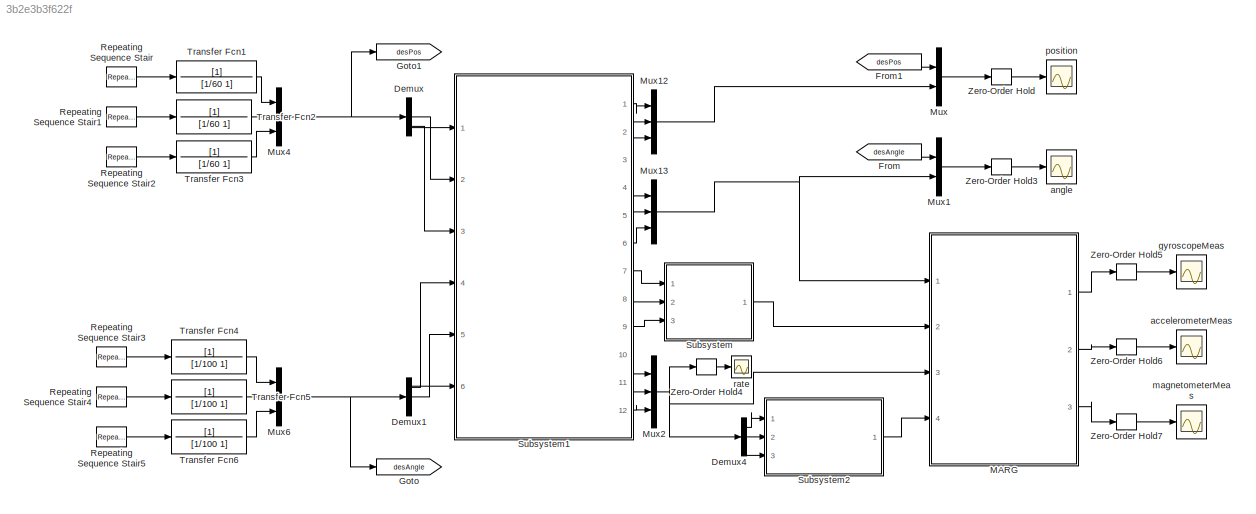
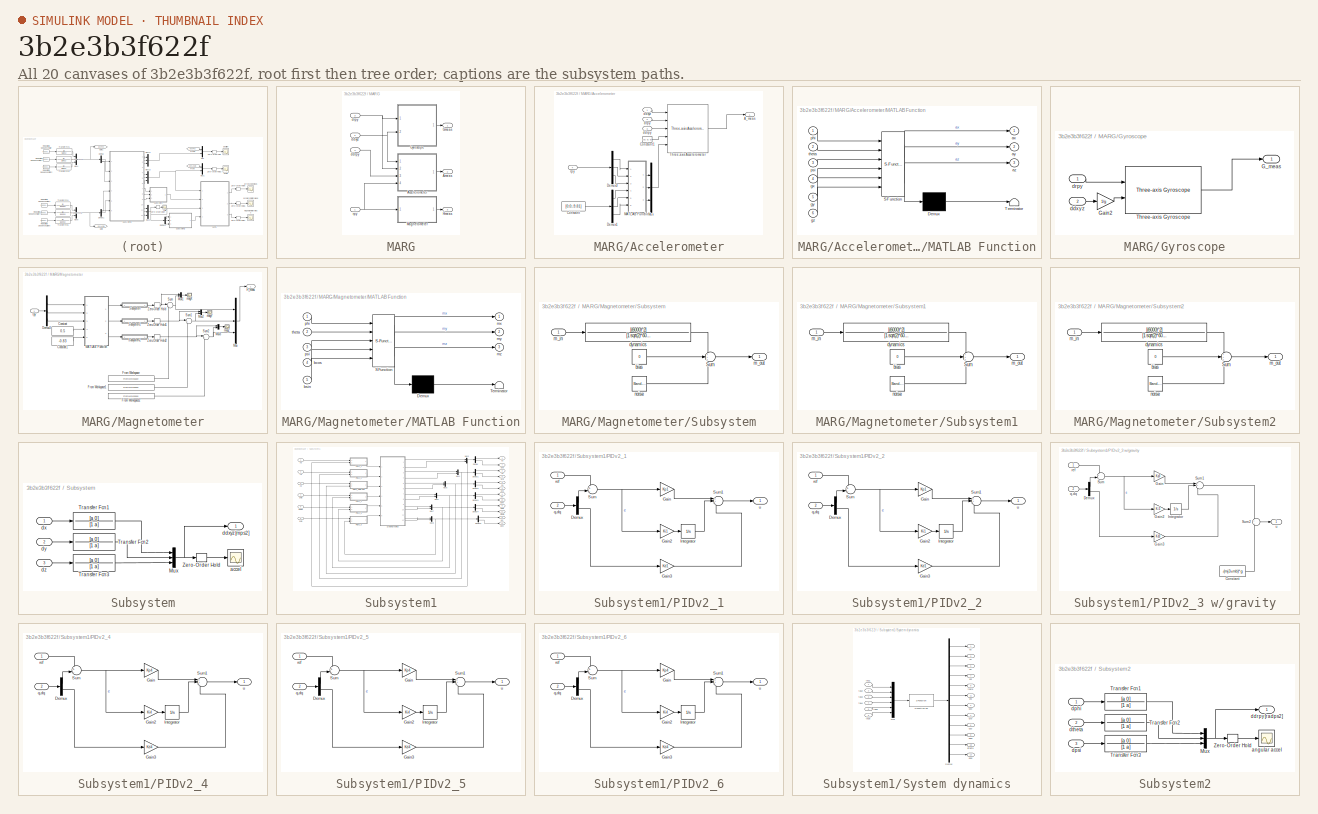
[diagram: thumbnail index - all 20 canvases of the model, root first then tree order]
MODEL slx_3b2e3b3f622f
KIND model
CONFIG AbsTol = auto
CONFIG EnableMultiTasking = on
CONFIG FixedStep = auto
CONFIG MaxStep = auto
CONFIG MinStep = auto
CONFIG RelTol = 1e-3
CONFIG SampleTimeConstraint = Unconstrained
CONFIG Solver = ode15s
CONFIG SolverName = ode15s
CONFIG StartTime = 0.0
CONFIG StopTime = tsim
BLOCK [Demux] Demux
  DisplayOption = bar
  Outputs = 3
  Ports = [1, 3]
BLOCK [Demux] Demux1
  DisplayOption = bar
  Outputs = 3
  Ports = [1, 3]
BLOCK [Demux] Demux4
  DisplayOption = bar
  Outputs = 3
  Ports = [1, 3]
BLOCK [From] From
  GotoTag = desAngle
BLOCK [From] From1
  GotoTag = desPos
BLOCK [Goto] Goto
  GotoTag = desAngle
BLOCK [Goto] Goto1
  GotoTag = desPos
BLOCK [SubSystem] MARG
  Ports = [4, 3]
  RequestExecContextInheritance = off
BLOCK [SubSystem] MARG/Accelerometer
  Ports = [4, 1]
  RequestExecContextInheritance = off
BLOCK [Outport] MARG/Accelerometer/A_meas
  IconDisplay = Port number
BLOCK [Constant] MARG/Accelerometer/Constant
  Value = [0;0;-9.81]
BLOCK [Constant] MARG/Accelerometer/Constant1
  Value = [0; 0; 0]
BLOCK [Demux] MARG/Accelerometer/Demux1
  DisplayOption = bar
  Outputs = 3
  Ports = [1, 3]
BLOCK [Demux] MARG/Accelerometer/Demux3
  DisplayOption = bar
  Outputs = 3
  Ports = [1, 3]
BLOCK [SubSystem] MARG/Accelerometer/MATLAB Function
  ErrorFcn = Stateflow.Translate.translate
  PermitHierarchicalResolution = ExplicitOnly
  Ports = [6, 3]
  RequestExecContextInheritance = off
  SFBlockType = MATLAB Function
  TreatAsAtomicUnit = on
BLOCK [Demux] MARG/Accelerometer/MATLAB Function/ Demux 
  Outputs = 1
  Ports = [1, 1]
BLOCK [S-Function] MARG/Accelerometer/MATLAB Function/ SFunction 
  EnableBusSupport = on
  FunctionName = sf_sfun
  PortCounts = [6 4]
  Ports = [6, 4]
  SFcnIsStateOwnerBlock = off
  SFunctionDeploymentMode = off
  Tag = Stateflow S-Function testbench_model_2019a 1
BLOCK [Terminator] MARG/Accelerometer/MATLAB Function/ Terminator 
BLOCK [Outport] MARG/Accelerometer/MATLAB Function/ax
  IconDisplay = Port number
BLOCK [Outport] MARG/Accelerometer/MATLAB Function/ay
  IconDisplay = Port number
  Port = 2
BLOCK [Outport] MARG/Accelerometer/MATLAB Function/az
  IconDisplay = Port number
  Port = 3
BLOCK [Inport] MARG/Accelerometer/MATLAB Function/gx
  IconDisplay = Port number
  Port = 4
BLOCK [Inport] MARG/Accelerometer/MATLAB Function/gy
  IconDisplay = Port number
  Port = 5
BLOCK [Inport] MARG/Accelerometer/MATLAB Function/gz
  IconDisplay = Port number
  Port = 6
BLOCK [Inport] MARG/Accelerometer/MATLAB Function/phi
  IconDisplay = Port number
BLOCK [Inport] MARG/Accelerometer/MATLAB Function/psi
  IconDisplay = Port number
  Port = 3
BLOCK [Inport] MARG/Accelerometer/MATLAB Function/theta
  IconDisplay = Port number
  Port = 2
BLOCK [Mux] MARG/Accelerometer/Mux
  DisplayOption = bar
  Inputs = 3
  Ports = [3, 1]
BLOCK [Reference] MARG/Accelerometer/Three-axis Accelerometer  REF=aerolibnav/Three-axis Accelerometer
  Ports = [5, 1]
  SourceBlock = aerolibnav/Three-axis Accelerometer
  SourceProductBaseCode = AE
  SourceProductName = Aerospace Blockset
  SourceType = Three-axis Accelerometer
BLOCK [Inport] MARG/Accelerometer/ddrpy
  IconDisplay = Port number
  Port = 3
BLOCK [Inport] MARG/Accelerometer/ddxyz
  IconDisplay = Port number
BLOCK [Inport] MARG/Accelerometer/drpy
  IconDisplay = Port number
  Port = 2
BLOCK [Inport] MARG/Accelerometer/rpy
  IconDisplay = Port number
  Port = 4
BLOCK [Outport] MARG/Ameas
  IconDisplay = Port number
  Port = 2
BLOCK [Outport] MARG/Gmeas
  IconDisplay = Port number
BLOCK [SubSystem] MARG/Gyroscope
  Ports = [2, 1]
  RequestExecContextInheritance = off
BLOCK [Outport] MARG/Gyroscope/G_meas
  IconDisplay = Port number
BLOCK [Gain] MARG/Gyroscope/Gain2
  Gain = 1/g
  OutDataTypeStr = Inherit: Inherit via internal rule
  ParamDataTypeStr = Inherit: Inherit via internal rule
  SaturateOnIntegerOverflow = off
BLOCK [Reference] MARG/Gyroscope/Three-axis Gyroscope  REF=aerolibnav/Three-axis Gyroscope
  Ports = [2, 1]
  SourceBlock = aerolibnav/Three-axis Gyroscope
  SourceProductBaseCode = AE
  SourceProductName = Aerospace Blockset
  SourceType = Three-axis Gyroscope
BLOCK [Inport] MARG/Gyroscope/ddxyz
  IconDisplay = Port number
  Port = 2
BLOCK [Inport] MARG/Gyroscope/drpy
  IconDisplay = Port number
BLOCK [Outport] MARG/Hmeas
  IconDisplay = Port number
  Port = 3
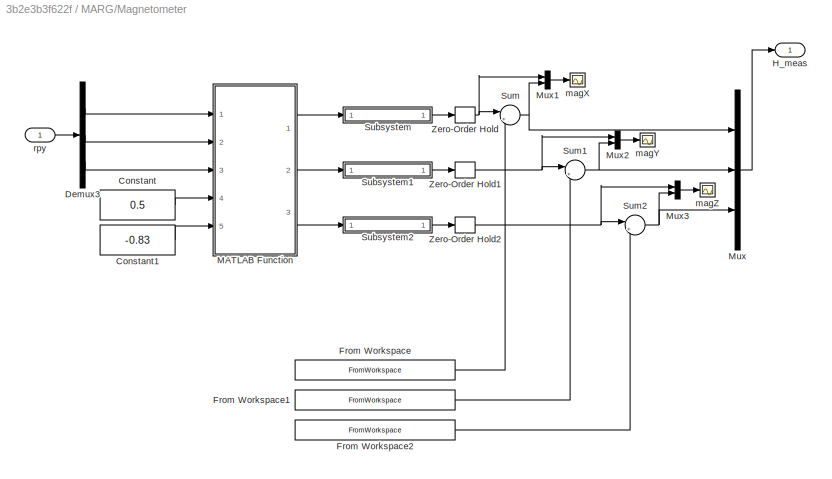
BLOCK [SubSystem] MARG/Magnetometer
  Ports = [1, 1]
  RequestExecContextInheritance = off
BLOCK [Constant] MARG/Magnetometer/Constant
  Value = 0.5
BLOCK [Constant] MARG/Magnetometer/Constant1
  Value = -0.83
BLOCK [Demux] MARG/Magnetometer/Demux3
  DisplayOption = bar
  Outputs = 3
  Ports = [1, 3]
BLOCK [FromWorkspace] MARG/Magnetometer/From Workspace
  SampleTime = Tsampling
  VariableName = [magDistTime magDisturbance(:,1)]
  ZeroCross = on
BLOCK [FromWorkspace] MARG/Magnetometer/From Workspace1
  SampleTime = Tsampling
  VariableName = [magDistTime magDisturbance(:,2)]
  ZeroCross = on
BLOCK [FromWorkspace] MARG/Magnetometer/From Workspace2
  SampleTime = Tsampling
  VariableName = [magDistTime magDisturbance(:,3)]
  ZeroCross = on
BLOCK [Outport] MARG/Magnetometer/H_meas
  IconDisplay = Port number
BLOCK [SubSystem] MARG/Magnetometer/MATLAB Function
  ErrorFcn = Stateflow.Translate.translate
  PermitHierarchicalResolution = ExplicitOnly
  Ports = [5, 3]
  RequestExecContextInheritance = off
  SFBlockType = MATLAB Function
  TreatAsAtomicUnit = on
BLOCK [Demux] MARG/Magnetometer/MATLAB Function/ Demux 
  Outputs = 1
  Ports = [1, 1]
BLOCK [S-Function] MARG/Magnetometer/MATLAB Function/ SFunction 
  EnableBusSupport = on
  FunctionName = sf_sfun
  PortCounts = [5 4]
  Ports = [5, 4]
  SFcnIsStateOwnerBlock = off
  SFunctionDeploymentMode = off
  Tag = Stateflow S-Function testbench_model_2019a 2
BLOCK [Terminator] MARG/Magnetometer/MATLAB Function/ Terminator 
BLOCK [Inport] MARG/Magnetometer/MATLAB Function/bcos
  IconDisplay = Port number
  Port = 4
BLOCK [Inport] MARG/Magnetometer/MATLAB Function/bsin
  IconDisplay = Port number
  Port = 5
BLOCK [Outport] MARG/Magnetometer/MATLAB Function/mx
  IconDisplay = Port number
BLOCK [Outport] MARG/Magnetometer/MATLAB Function/my
  IconDisplay = Port number
  Port = 2
BLOCK [Outport] MARG/Magnetometer/MATLAB Function/mz
  IconDisplay = Port number
  Port = 3
BLOCK [Inport] MARG/Magnetometer/MATLAB Function/phi
  IconDisplay = Port number
BLOCK [Inport] MARG/Magnetometer/MATLAB Function/psi
  IconDisplay = Port number
  Port = 3
BLOCK [Inport] MARG/Magnetometer/MATLAB Function/theta
  IconDisplay = Port number
  Port = 2
BLOCK [Mux] MARG/Magnetometer/Mux
  DisplayOption = bar
  Inputs = 3
  Ports = [3, 1]
BLOCK [Mux] MARG/Magnetometer/Mux1
  DisplayOption = bar
  Inputs = 2
  Ports = [2, 1]
BLOCK [Mux] MARG/Magnetometer/Mux2
  DisplayOption = bar
  Inputs = 2
  Ports = [2, 1]
BLOCK [Mux] MARG/Magnetometer/Mux3
  DisplayOption = bar
  Inputs = 2
  Ports = [2, 1]
BLOCK [SubSystem] MARG/Magnetometer/Subsystem
  Ports = [1, 1]
  RequestExecContextInheritance = off
BLOCK [Sum] MARG/Magnetometer/Subsystem/Sum
  IconShape = round
  InputSameDT = off
  Inputs = +++
  OutDataTypeStr = Inherit: Inherit via internal rule
  Ports = [3, 1]
  SaturateOnIntegerOverflow = off
BLOCK [Constant] MARG/Magnetometer/Subsystem/bias
  Value = 0
BLOCK [TransferFcn] MARG/Magnetometer/Subsystem/dynamics
  Denominator = [1 sqrt(2)*6000 (6000)^2]
  Numerator = [(6000)^2]
BLOCK [Inport] MARG/Magnetometer/Subsystem/m_in
  IconDisplay = Port number
BLOCK [Outport] MARG/Magnetometer/Subsystem/m_out
  IconDisplay = Port number
BLOCK [Reference] MARG/Magnetometer/Subsystem/noise  REF=simulink/Sources/Band-Limited
White Noise
  Ports = [0, 1]
  SourceBlock = simulink/Sources/Band-Limited\nWhite Noise
  SourceProductBaseCode = SL
  SourceProductName = Simulink
  SourceType = Band-Limited White Noise.
BLOCK [SubSystem] MARG/Magnetometer/Subsystem1
  Ports = [1, 1]
  RequestExecContextInheritance = off
BLOCK [Sum] MARG/Magnetometer/Subsystem1/Sum
  IconShape = round
  InputSameDT = off
  Inputs = +++
  OutDataTypeStr = Inherit: Inherit via internal rule
  Ports = [3, 1]
  SaturateOnIntegerOverflow = off
BLOCK [Constant] MARG/Magnetometer/Subsystem1/bias
  Value = 0
BLOCK [TransferFcn] MARG/Magnetometer/Subsystem1/dynamics
  Denominator = [1 sqrt(2)*6000 (6000)^2]
  Numerator = [(6000)^2]
BLOCK [Inport] MARG/Magnetometer/Subsystem1/m_in
  IconDisplay = Port number
BLOCK [Outport] MARG/Magnetometer/Subsystem1/m_out
  IconDisplay = Port number
BLOCK [Reference] MARG/Magnetometer/Subsystem1/noise  REF=simulink/Sources/Band-Limited
White Noise
  Ports = [0, 1]
  SourceBlock = simulink/Sources/Band-Limited\nWhite Noise
  SourceProductBaseCode = SL
  SourceProductName = Simulink
  SourceType = Band-Limited White Noise.
BLOCK [SubSystem] MARG/Magnetometer/Subsystem2
  Ports = [1, 1]
  RequestExecContextInheritance = off
BLOCK [Sum] MARG/Magnetometer/Subsystem2/Sum
  IconShape = round
  InputSameDT = off
  Inputs = +++
  OutDataTypeStr = Inherit: Inherit via internal rule
  Ports = [3, 1]
  SaturateOnIntegerOverflow = off
BLOCK [Constant] MARG/Magnetometer/Subsystem2/bias
  Value = 0
BLOCK [TransferFcn] MARG/Magnetometer/Subsystem2/dynamics
  Denominator = [1 sqrt(2)*6000 (6000)^2]
  Numerator = [(6000)^2]
BLOCK [Inport] MARG/Magnetometer/Subsystem2/m_in
  IconDisplay = Port number
BLOCK [Outport] MARG/Magnetometer/Subsystem2/m_out
  IconDisplay = Port number
BLOCK [Reference] MARG/Magnetometer/Subsystem2/noise  REF=simulink/Sources/Band-Limited
White Noise
  Ports = [0, 1]
  SourceBlock = simulink/Sources/Band-Limited\nWhite Noise
  SourceProductBaseCode = SL
  SourceProductName = Simulink
  SourceType = Band-Limited White Noise.
BLOCK [Sum] MARG/Magnetometer/Sum
  IconShape = round
  InputSameDT = off
  Inputs = |++
  OutDataTypeStr = Inherit: Inherit via internal rule
  Ports = [2, 1]
  SaturateOnIntegerOverflow = off
BLOCK [Sum] MARG/Magnetometer/Sum1
  IconShape = round
  InputSameDT = off
  Inputs = |++
  OutDataTypeStr = Inherit: Inherit via internal rule
  Ports = [2, 1]
  SaturateOnIntegerOverflow = off
BLOCK [Sum] MARG/Magnetometer/Sum2
  IconShape = round
  InputSameDT = off
  Inputs = |++
  OutDataTypeStr = Inherit: Inherit via internal rule
  Ports = [2, 1]
  SaturateOnIntegerOverflow = off
BLOCK [ZeroOrderHold] MARG/Magnetometer/Zero-Order Hold
  SampleTime = Tsampling
BLOCK [ZeroOrderHold] MARG/Magnetometer/Zero-Order Hold1
  SampleTime = Tsampling
BLOCK [ZeroOrderHold] MARG/Magnetometer/Zero-Order Hold2
  SampleTime = Tsampling
BLOCK [Scope] MARG/Magnetometer/magX
  Floating = off
  NumInputPorts = 1
  Ports = [1]
  ScopeSpecificationString = Simulink.scopes.TimeScopeBlockCfg('CurrentConfiguration', extmgr.ConfigurationSet(extmgr.Configuration('Core','General UI',true),extmgr.Configuration('Core','Source UI',true),extmgr.Configuration('Sources','WiredSimulink',true,'DataLoggingVariableName','ScopeData1','DataLoggingSaveFormat','StructureWithTime'),extmgr.Configuration('Visuals','Time Domain',true,'SerializedDisplays',{struct('MinYLimRe...<+1565ch>
BLOCK [Scope] MARG/Magnetometer/magY
  Floating = off
  NumInputPorts = 1
  Ports = [1]
  ScopeSpecificationString = Simulink.scopes.TimeScopeBlockCfg('CurrentConfiguration', extmgr.ConfigurationSet(extmgr.Configuration('Core','General UI',true),extmgr.Configuration('Core','Source UI',true),extmgr.Configuration('Sources','WiredSimulink',true,'DataLoggingVariableName','ScopeData2','DataLoggingSaveFormat','StructureWithTime'),extmgr.Configuration('Visuals','Time Domain',true,'SerializedDisplays',{struct('MinYLimRe...<+1571ch>
BLOCK [Scope] MARG/Magnetometer/magZ
  Floating = off
  NumInputPorts = 1
  Ports = [1]
  ScopeSpecificationString = Simulink.scopes.TimeScopeBlockCfg('CurrentConfiguration', extmgr.ConfigurationSet(extmgr.Configuration('Core','General UI',true),extmgr.Configuration('Core','Source UI',true),extmgr.Configuration('Sources','WiredSimulink',true,'DataLoggingVariableName','ScopeData3','DataLoggingSaveFormat','StructureWithTime'),extmgr.Configuration('Visuals','Time Domain',true,'SerializedDisplays',{struct('MinYLimRe...<+1545ch>
BLOCK [Inport] MARG/Magnetometer/rpy
  IconDisplay = Port number
BLOCK [Inport] MARG/ddrpy
  IconDisplay = Port number
  Port = 4
BLOCK [Inport] MARG/ddxyz
  IconDisplay = Port number
  Port = 2
BLOCK [Inport] MARG/drpy
  IconDisplay = Port number
  Port = 3
BLOCK [Inport] MARG/rpy
  IconDisplay = Port number
BLOCK [Mux] Mux
  DisplayOption = bar
  Inputs = 2
  Ports = [2, 1]
BLOCK [Mux] Mux1
  DisplayOption = bar
  Inputs = 2
  Ports = [2, 1]
BLOCK [Mux] Mux12
  DisplayOption = bar
  Inputs = 3
  Ports = [3, 1]
BLOCK [Mux] Mux13
  DisplayOption = bar
  Inputs = 3
  Ports = [3, 1]
BLOCK [Mux] Mux2
  DisplayOption = bar
  Inputs = 3
  Ports = [3, 1]
BLOCK [Mux] Mux4
  DisplayOption = bar
  Inputs = 3
  Ports = [3, 1]
BLOCK [Mux] Mux6
  DisplayOption = bar
  Inputs = 3
  Ports = [3, 1]
BLOCK [Reference] Repeating Sequence Stair  REF=simulink/Sources/Repeating
Sequence
Stair
  Ports = [0, 1]
  SourceBlock = simulink/Sources/Repeating\nSequence\nStair
  SourceProductBaseCode = SL
  SourceProductName = Simulink
  SourceType = Repeating Sequence Stair
BLOCK [Reference] Repeating Sequence Stair1  REF=simulink/Sources/Repeating
Sequence
Stair
  Ports = [0, 1]
  SourceBlock = simulink/Sources/Repeating\nSequence\nStair
  SourceProductBaseCode = SL
  SourceProductName = Simulink
  SourceType = Repeating Sequence Stair
BLOCK [Reference] Repeating Sequence Stair2  REF=simulink/Sources/Repeating
Sequence
Stair
  Ports = [0, 1]
  SourceBlock = simulink/Sources/Repeating\nSequence\nStair
  SourceProductBaseCode = SL
  SourceProductName = Simulink
  SourceType = Repeating Sequence Stair
BLOCK [Reference] Repeating Sequence Stair3  REF=simulink/Sources/Repeating
Sequence
Stair
  Ports = [0, 1]
  SourceBlock = simulink/Sources/Repeating\nSequence\nStair
  SourceProductBaseCode = SL
  SourceProductName = Simulink
  SourceType = Repeating Sequence Stair
BLOCK [Reference] Repeating Sequence Stair4  REF=simulink/Sources/Repeating
Sequence
Stair
  Ports = [0, 1]
  SourceBlock = simulink/Sources/Repeating\nSequence\nStair
  SourceProductBaseCode = SL
  SourceProductName = Simulink
  SourceType = Repeating Sequence Stair
BLOCK [Reference] Repeating Sequence Stair5  REF=simulink/Sources/Repeating
Sequence
Stair
  Ports = [0, 1]
  SourceBlock = simulink/Sources/Repeating\nSequence\nStair
  SourceProductBaseCode = SL
  SourceProductName = Simulink
  SourceType = Repeating Sequence Stair
BLOCK [SubSystem] Subsystem
  Ports = [3, 1]
  RequestExecContextInheritance = off
BLOCK [Mux] Subsystem/Mux
  DisplayOption = bar
  Inputs = 3
  Ports = [3, 1]
BLOCK [TransferFcn] Subsystem/Transfer Fcn1
  Denominator = [1 a]
  Numerator = [a 0]
BLOCK [TransferFcn] Subsystem/Transfer Fcn2
  Denominator = [1 a]
  Numerator = [a 0]
BLOCK [TransferFcn] Subsystem/Transfer Fcn3
  Denominator = [1 a]
  Numerator = [a 0]
BLOCK [ZeroOrderHold] Subsystem/Zero-Order Hold
  SampleTime = Tsampling
BLOCK [Scope] Subsystem/accel
  Floating = off
  NumInputPorts = 1
  Ports = [1]
  ScopeSpecificationString = Simulink.scopes.TimeScopeBlockCfg('CurrentConfiguration', extmgr.ConfigurationSet(extmgr.Configuration('Core','General UI',true),extmgr.Configuration('Core','Source UI',true),extmgr.Configuration('Sources','WiredSimulink',true,'DataLoggingVariableName','extAccel','DataLogging',true,'DataLoggingSaveFormat','StructureWithTime'),extmgr.Configuration('Visuals','Time Domain',true,'SerializedDisplays',{...<+1552ch>
BLOCK [Outport] Subsystem/ddxyz [mps2]
  IconDisplay = Port number
BLOCK [Inport] Subsystem/dx
  IconDisplay = Port number
BLOCK [Inport] Subsystem/dy
  IconDisplay = Port number
  Port = 2
BLOCK [Inport] Subsystem/dz
  IconDisplay = Port number
  Port = 3
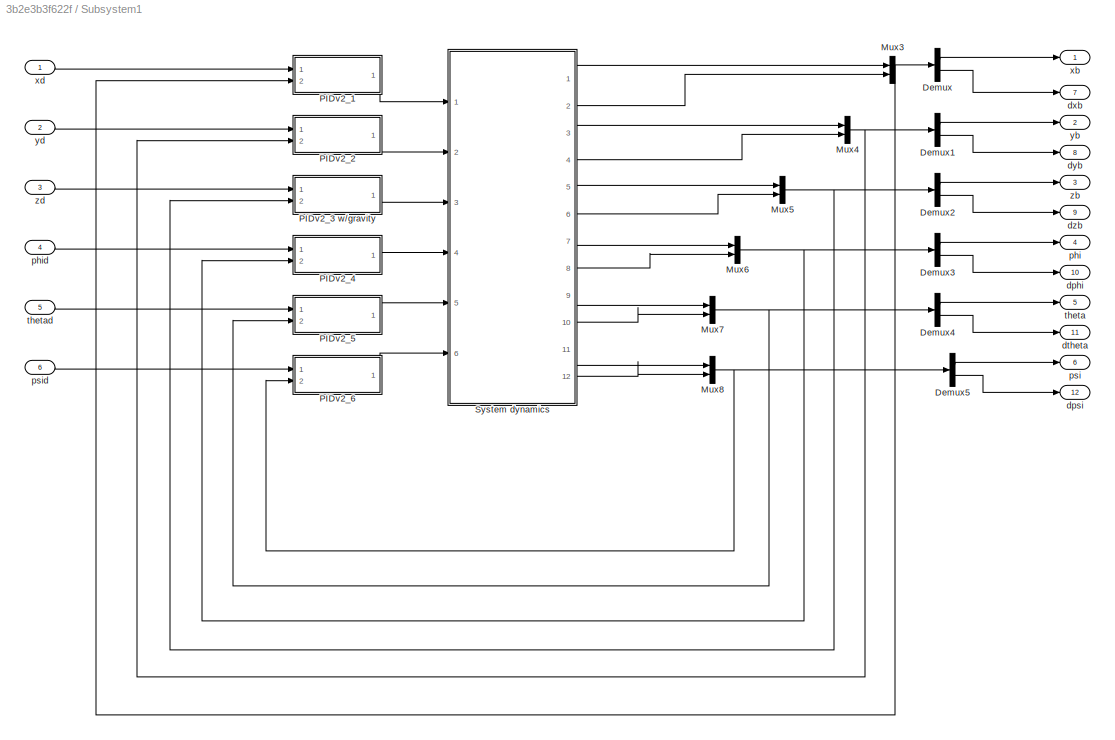
BLOCK [SubSystem] Subsystem1
  Ports = [6, 12]
  RequestExecContextInheritance = off
BLOCK [Demux] Subsystem1/Demux
  DisplayOption = bar
  Outputs = 2
  Ports = [1, 2]
BLOCK [Demux] Subsystem1/Demux1
  DisplayOption = bar
  Outputs = 2
  Ports = [1, 2]
BLOCK [Demux] Subsystem1/Demux2
  DisplayOption = bar
  Outputs = 2
  Ports = [1, 2]
BLOCK [Demux] Subsystem1/Demux3
  DisplayOption = bar
  Outputs = 2
  Ports = [1, 2]
BLOCK [Demux] Subsystem1/Demux4
  DisplayOption = bar
  Outputs = 2
  Ports = [1, 2]
BLOCK [Demux] Subsystem1/Demux5
  DisplayOption = bar
  Outputs = 2
  Ports = [1, 2]
BLOCK [Mux] Subsystem1/Mux3
  DisplayOption = bar
  Inputs = 2
  Ports = [2, 1]
BLOCK [Mux] Subsystem1/Mux4
  DisplayOption = bar
  Inputs = 2
  Ports = [2, 1]
BLOCK [Mux] Subsystem1/Mux5
  DisplayOption = bar
  Inputs = 2
  Ports = [2, 1]
BLOCK [Mux] Subsystem1/Mux6
  DisplayOption = bar
  Inputs = 2
  Ports = [2, 1]
BLOCK [Mux] Subsystem1/Mux7
  DisplayOption = bar
  Inputs = 2
  Ports = [2, 1]
BLOCK [Mux] Subsystem1/Mux8
  DisplayOption = bar
  Inputs = 2
  Ports = [2, 1]
BLOCK [SubSystem] Subsystem1/PIDv2_1
  Ports = [2, 1]
  RequestExecContextInheritance = off
BLOCK [Demux] Subsystem1/PIDv2_1/Demux
  DisplayOption = bar
  Outputs = 2
  Ports = [1, 2]
BLOCK [Gain] Subsystem1/PIDv2_1/Gain
  Gain = Kp1
  OutDataTypeStr = Inherit: Inherit via internal rule
  ParamDataTypeStr = Inherit: Inherit via internal rule
  SaturateOnIntegerOverflow = off
BLOCK [Gain] Subsystem1/PIDv2_1/Gain2
  Gain = Ki1
  OutDataTypeStr = Inherit: Inherit via internal rule
  ParamDataTypeStr = Inherit: Inherit via internal rule
  SaturateOnIntegerOverflow = off
BLOCK [Gain] Subsystem1/PIDv2_1/Gain3
  Gain = Kd1
  OutDataTypeStr = Inherit: Inherit via internal rule
  ParamDataTypeStr = Inherit: Inherit via internal rule
  SaturateOnIntegerOverflow = off
BLOCK [Integrator] Subsystem1/PIDv2_1/Integrator
  Ports = [1, 1]
BLOCK [Sum] Subsystem1/PIDv2_1/Sum
  IconShape = round
  InputSameDT = off
  Inputs = +-
  OutDataTypeStr = Inherit: Inherit via internal rule
  Ports = [2, 1]
  SaturateOnIntegerOverflow = off
BLOCK [Sum] Subsystem1/PIDv2_1/Sum1
  IconShape = round
  InputSameDT = off
  Inputs = ++-
  OutDataTypeStr = Inherit: Inherit via internal rule
  Ports = [3, 1]
  SaturateOnIntegerOverflow = off
BLOCK [Inport] Subsystem1/PIDv2_1/q,dq
  IconDisplay = Port number
  Port = 2
BLOCK [Inport] Subsystem1/PIDv2_1/ref
  IconDisplay = Port number
BLOCK [Outport] Subsystem1/PIDv2_1/u
  IconDisplay = Port number
BLOCK [SubSystem] Subsystem1/PIDv2_2
  Ports = [2, 1]
  RequestExecContextInheritance = off
BLOCK [Demux] Subsystem1/PIDv2_2/Demux
  DisplayOption = bar
  Outputs = 2
  Ports = [1, 2]
BLOCK [Gain] Subsystem1/PIDv2_2/Gain
  Gain = Kp1
  OutDataTypeStr = Inherit: Inherit via internal rule
  ParamDataTypeStr = Inherit: Inherit via internal rule
  SaturateOnIntegerOverflow = off
BLOCK [Gain] Subsystem1/PIDv2_2/Gain2
  Gain = Ki1
  OutDataTypeStr = Inherit: Inherit via internal rule
  ParamDataTypeStr = Inherit: Inherit via internal rule
  SaturateOnIntegerOverflow = off
BLOCK [Gain] Subsystem1/PIDv2_2/Gain3
  Gain = Kd1
  OutDataTypeStr = Inherit: Inherit via internal rule
  ParamDataTypeStr = Inherit: Inherit via internal rule
  SaturateOnIntegerOverflow = off
BLOCK [Integrator] Subsystem1/PIDv2_2/Integrator
  Ports = [1, 1]
BLOCK [Sum] Subsystem1/PIDv2_2/Sum
  IconShape = round
  InputSameDT = off
  Inputs = +-
  OutDataTypeStr = Inherit: Inherit via internal rule
  Ports = [2, 1]
  SaturateOnIntegerOverflow = off
BLOCK [Sum] Subsystem1/PIDv2_2/Sum1
  IconShape = round
  InputSameDT = off
  Inputs = ++-
  OutDataTypeStr = Inherit: Inherit via internal rule
  Ports = [3, 1]
  SaturateOnIntegerOverflow = off
BLOCK [Inport] Subsystem1/PIDv2_2/q,dq
  IconDisplay = Port number
  Port = 2
BLOCK [Inport] Subsystem1/PIDv2_2/ref
  IconDisplay = Port number
BLOCK [Outport] Subsystem1/PIDv2_2/u
  IconDisplay = Port number
BLOCK [SubSystem] Subsystem1/PIDv2_3 w//gravity
  Ports = [2, 1]
  RequestExecContextInheritance = off
BLOCK [Constant] Subsystem1/PIDv2_3 w//gravity/Constant
  Value = -(mj3+mb)*g
BLOCK [Demux] Subsystem1/PIDv2_3 w//gravity/Demux
  DisplayOption = bar
  Outputs = 2
  Ports = [1, 2]
BLOCK [Gain] Subsystem1/PIDv2_3 w//gravity/Gain
  Gain = Kp3
  OutDataTypeStr = Inherit: Inherit via internal rule
  ParamDataTypeStr = Inherit: Inherit via internal rule
  SaturateOnIntegerOverflow = off
BLOCK [Gain] Subsystem1/PIDv2_3 w//gravity/Gain2
  Gain = Ki3
  OutDataTypeStr = Inherit: Inherit via internal rule
  ParamDataTypeStr = Inherit: Inherit via internal rule
  SaturateOnIntegerOverflow = off
BLOCK [Gain] Subsystem1/PIDv2_3 w//gravity/Gain3
  Gain = Kd3
  OutDataTypeStr = Inherit: Inherit via internal rule
  ParamDataTypeStr = Inherit: Inherit via internal rule
  SaturateOnIntegerOverflow = off
BLOCK [Integrator] Subsystem1/PIDv2_3 w//gravity/Integrator
  Ports = [1, 1]
BLOCK [Sum] Subsystem1/PIDv2_3 w//gravity/Sum
  IconShape = round
  InputSameDT = off
  Inputs = +-
  OutDataTypeStr = Inherit: Inherit via internal rule
  Ports = [2, 1]
  SaturateOnIntegerOverflow = off
BLOCK [Sum] Subsystem1/PIDv2_3 w//gravity/Sum1
  IconShape = round
  InputSameDT = off
  Inputs = ++-
  OutDataTypeStr = Inherit: Inherit via internal rule
  Ports = [3, 1]
  SaturateOnIntegerOverflow = off
BLOCK [Sum] Subsystem1/PIDv2_3 w//gravity/Sum2
  IconShape = round
  InputSameDT = off
  Inputs = +-
  OutDataTypeStr = Inherit: Inherit via internal rule
  Ports = [2, 1]
  SaturateOnIntegerOverflow = off
BLOCK [Inport] Subsystem1/PIDv2_3 w//gravity/q,dq
  IconDisplay = Port number
  Port = 2
BLOCK [Inport] Subsystem1/PIDv2_3 w//gravity/ref
  IconDisplay = Port number
BLOCK [Outport] Subsystem1/PIDv2_3 w//gravity/u
  IconDisplay = Port number
BLOCK [SubSystem] Subsystem1/PIDv2_4
  Ports = [2, 1]
  RequestExecContextInheritance = off
BLOCK [Demux] Subsystem1/PIDv2_4/Demux
  DisplayOption = bar
  Outputs = 2
  Ports = [1, 2]
BLOCK [Gain] Subsystem1/PIDv2_4/Gain
  Gain = Kp4
  OutDataTypeStr = Inherit: Inherit via internal rule
  ParamDataTypeStr = Inherit: Inherit via internal rule
  SaturateOnIntegerOverflow = off
BLOCK [Gain] Subsystem1/PIDv2_4/Gain2
  Gain = Ki4
  OutDataTypeStr = Inherit: Inherit via internal rule
  ParamDataTypeStr = Inherit: Inherit via internal rule
  SaturateOnIntegerOverflow = off
BLOCK [Gain] Subsystem1/PIDv2_4/Gain3
  Gain = Kd4
  OutDataTypeStr = Inherit: Inherit via internal rule
  ParamDataTypeStr = Inherit: Inherit via internal rule
  SaturateOnIntegerOverflow = off
BLOCK [Integrator] Subsystem1/PIDv2_4/Integrator
  Ports = [1, 1]
BLOCK [Sum] Subsystem1/PIDv2_4/Sum
  IconShape = round
  InputSameDT = off
  Inputs = +-
  OutDataTypeStr = Inherit: Inherit via internal rule
  Ports = [2, 1]
  SaturateOnIntegerOverflow = off
BLOCK [Sum] Subsystem1/PIDv2_4/Sum1
  IconShape = round
  InputSameDT = off
  Inputs = ++-
  OutDataTypeStr = Inherit: Inherit via internal rule
  Ports = [3, 1]
  SaturateOnIntegerOverflow = off
BLOCK [Inport] Subsystem1/PIDv2_4/q,dq
  IconDisplay = Port number
  Port = 2
BLOCK [Inport] Subsystem1/PIDv2_4/ref
  IconDisplay = Port number
BLOCK [Outport] Subsystem1/PIDv2_4/u
  IconDisplay = Port number
BLOCK [SubSystem] Subsystem1/PIDv2_5
  Ports = [2, 1]
  RequestExecContextInheritance = off
BLOCK [Demux] Subsystem1/PIDv2_5/Demux
  DisplayOption = bar
  Outputs = 2
  Ports = [1, 2]
BLOCK [Gain] Subsystem1/PIDv2_5/Gain
  Gain = Kp4
  OutDataTypeStr = Inherit: Inherit via internal rule
  ParamDataTypeStr = Inherit: Inherit via internal rule
  SaturateOnIntegerOverflow = off
BLOCK [Gain] Subsystem1/PIDv2_5/Gain2
  Gain = Ki4
  OutDataTypeStr = Inherit: Inherit via internal rule
  ParamDataTypeStr = Inherit: Inherit via internal rule
  SaturateOnIntegerOverflow = off
BLOCK [Gain] Subsystem1/PIDv2_5/Gain3
  Gain = Kd4
  OutDataTypeStr = Inherit: Inherit via internal rule
  ParamDataTypeStr = Inherit: Inherit via internal rule
  SaturateOnIntegerOverflow = off
BLOCK [Integrator] Subsystem1/PIDv2_5/Integrator
  Ports = [1, 1]
BLOCK [Sum] Subsystem1/PIDv2_5/Sum
  IconShape = round
  InputSameDT = off
  Inputs = +-
  OutDataTypeStr = Inherit: Inherit via internal rule
  Ports = [2, 1]
  SaturateOnIntegerOverflow = off
BLOCK [Sum] Subsystem1/PIDv2_5/Sum1
  IconShape = round
  InputSameDT = off
  Inputs = ++-
  OutDataTypeStr = Inherit: Inherit via internal rule
  Ports = [3, 1]
  SaturateOnIntegerOverflow = off
BLOCK [Inport] Subsystem1/PIDv2_5/q,dq
  IconDisplay = Port number
  Port = 2
BLOCK [Inport] Subsystem1/PIDv2_5/ref
  IconDisplay = Port number
BLOCK [Outport] Subsystem1/PIDv2_5/u
  IconDisplay = Port number
BLOCK [SubSystem] Subsystem1/PIDv2_6
  Ports = [2, 1]
  RequestExecContextInheritance = off
BLOCK [Demux] Subsystem1/PIDv2_6/Demux
  DisplayOption = bar
  Outputs = 2
  Ports = [1, 2]
BLOCK [Gain] Subsystem1/PIDv2_6/Gain
  Gain = Kp4
  OutDataTypeStr = Inherit: Inherit via internal rule
  ParamDataTypeStr = Inherit: Inherit via internal rule
  SaturateOnIntegerOverflow = off
BLOCK [Gain] Subsystem1/PIDv2_6/Gain2
  Gain = Ki4
  OutDataTypeStr = Inherit: Inherit via internal rule
  ParamDataTypeStr = Inherit: Inherit via internal rule
  SaturateOnIntegerOverflow = off
BLOCK [Gain] Subsystem1/PIDv2_6/Gain3
  Gain = Kd4
  OutDataTypeStr = Inherit: Inherit via internal rule
  ParamDataTypeStr = Inherit: Inherit via internal rule
  SaturateOnIntegerOverflow = off
BLOCK [Integrator] Subsystem1/PIDv2_6/Integrator
  Ports = [1, 1]
BLOCK [Sum] Subsystem1/PIDv2_6/Sum
  IconShape = round
  InputSameDT = off
  Inputs = +-
  OutDataTypeStr = Inherit: Inherit via internal rule
  Ports = [2, 1]
  SaturateOnIntegerOverflow = off
BLOCK [Sum] Subsystem1/PIDv2_6/Sum1
  IconShape = round
  InputSameDT = off
  Inputs = ++-
  OutDataTypeStr = Inherit: Inherit via internal rule
  Ports = [3, 1]
  SaturateOnIntegerOverflow = off
BLOCK [Inport] Subsystem1/PIDv2_6/q,dq
  IconDisplay = Port number
  Port = 2
BLOCK [Inport] Subsystem1/PIDv2_6/ref
  IconDisplay = Port number
BLOCK [Outport] Subsystem1/PIDv2_6/u
  IconDisplay = Port number
BLOCK [SubSystem] Subsystem1/System dynamics
  Ports = [6, 12]
  RequestExecContextInheritance = off
BLOCK [Demux] Subsystem1/System dynamics/Demux
  DisplayOption = bar
  Outputs = 12
  Ports = [1, 12]
BLOCK [Mux] Subsystem1/System dynamics/Mux
  DisplayOption = bar
  Inputs = 6
  Ports = [6, 1]
BLOCK [S-Function] Subsystem1/System dynamics/S-Function eq.
  EnableBusSupport = off
  FunctionName = system_dynamics
  Ports = [1, 1]
  SFcnIsStateOwnerBlock = off
  SFunctionDeploymentMode = off
BLOCK [Outport] Subsystem1/System dynamics/dphi
  IconDisplay = Port number
  Port = 8
BLOCK [Outport] Subsystem1/System dynamics/dpsi
  IconDisplay = Port number
  Port = 12
BLOCK [Outport] Subsystem1/System dynamics/dtheta
  IconDisplay = Port number
  Port = 10
BLOCK [Outport] Subsystem1/System dynamics/dxb
  IconDisplay = Port number
  Port = 2
BLOCK [Outport] Subsystem1/System dynamics/dyb
  IconDisplay = Port number
  Port = 4
BLOCK [Outport] Subsystem1/System dynamics/dzb
  IconDisplay = Port number
  Port = 6
BLOCK [Outport] Subsystem1/System dynamics/phi
  IconDisplay = Port number
  Port = 7
BLOCK [Outport] Subsystem1/System dynamics/psi
  IconDisplay = Port number
  Port = 11
BLOCK [Inport] Subsystem1/System dynamics/tau1
  IconDisplay = Port number
BLOCK [Inport] Subsystem1/System dynamics/tau2
  IconDisplay = Port number
  Port = 2
BLOCK [Inport] Subsystem1/System dynamics/tau3
  IconDisplay = Port number
  Port = 3
BLOCK [Inport] Subsystem1/System dynamics/tau4
  IconDisplay = Port number
  Port = 4
BLOCK [Inport] Subsystem1/System dynamics/tau5
  IconDisplay = Port number
  Port = 5
BLOCK [Inport] Subsystem1/System dynamics/tau6
  IconDisplay = Port number
  Port = 6
BLOCK [Outport] Subsystem1/System dynamics/theta
  IconDisplay = Port number
  Port = 9
BLOCK [Outport] Subsystem1/System dynamics/xb
  IconDisplay = Port number
BLOCK [Outport] Subsystem1/System dynamics/yb
  IconDisplay = Port number
  Port = 3
BLOCK [Outport] Subsystem1/System dynamics/zb
  IconDisplay = Port number
  Port = 5
BLOCK [Outport] Subsystem1/dphi
  IconDisplay = Port number
  Port = 10
BLOCK [Outport] Subsystem1/dpsi
  IconDisplay = Port number
  Port = 12
BLOCK [Outport] Subsystem1/dtheta
  IconDisplay = Port number
  Port = 11
BLOCK [Outport] Subsystem1/dxb
  IconDisplay = Port number
  Port = 7
BLOCK [Outport] Subsystem1/dyb
  IconDisplay = Port number
  Port = 8
BLOCK [Outport] Subsystem1/dzb
  IconDisplay = Port number
  Port = 9
BLOCK [Outport] Subsystem1/phi
  IconDisplay = Port number
  Port = 4
BLOCK [Inport] Subsystem1/phid
  IconDisplay = Port number
  Port = 4
BLOCK [Outport] Subsystem1/psi
  IconDisplay = Port number
  Port = 6
BLOCK [Inport] Subsystem1/psid
  IconDisplay = Port number
  Port = 6
BLOCK [Outport] Subsystem1/theta
  IconDisplay = Port number
  Port = 5
BLOCK [Inport] Subsystem1/thetad
  IconDisplay = Port number
  Port = 5
BLOCK [Outport] Subsystem1/xb
  IconDisplay = Port number
BLOCK [Inport] Subsystem1/xd
  IconDisplay = Port number
BLOCK [Outport] Subsystem1/yb
  IconDisplay = Port number
  Port = 2
BLOCK [Inport] Subsystem1/yd
  IconDisplay = Port number
  Port = 2
BLOCK [Outport] Subsystem1/zb
  IconDisplay = Port number
  Port = 3
BLOCK [Inport] Subsystem1/zd
  IconDisplay = Port number
  Port = 3
BLOCK [SubSystem] Subsystem2
  Ports = [3, 1]
  RequestExecContextInheritance = off
BLOCK [Mux] Subsystem2/Mux
  DisplayOption = bar
  Inputs = 3
  Ports = [3, 1]
BLOCK [TransferFcn] Subsystem2/Transfer Fcn1
  Denominator = [1 a]
  Numerator = [a 0]
BLOCK [TransferFcn] Subsystem2/Transfer Fcn2
  Denominator = [1 a]
  Numerator = [a 0]
BLOCK [TransferFcn] Subsystem2/Transfer Fcn3
  Denominator = [1 a]
  Numerator = [a 0]
BLOCK [ZeroOrderHold] Subsystem2/Zero-Order Hold
  SampleTime = Tsampling
BLOCK [Scope] Subsystem2/angular accel
  Floating = off
  NumInputPorts = 1
  Ports = [1]
  ScopeSpecificationString = Simulink.scopes.TimeScopeBlockCfg('CurrentConfiguration', extmgr.ConfigurationSet(extmgr.Configuration('Core','General UI',true),extmgr.Configuration('Core','Source UI',true),extmgr.Configuration('Sources','WiredSimulink',true,'DataLoggingVariableName','extAngularAccel','DataLogging',true,'DataLoggingSaveFormat','StructureWithTime'),extmgr.Configuration('Visuals','Time Domain',true,'SerializedDisp...<+1554ch>
BLOCK [Outport] Subsystem2/ddrpy [radps2]
  IconDisplay = Port number
BLOCK [Inport] Subsystem2/dphi
  IconDisplay = Port number
BLOCK [Inport] Subsystem2/dpsi
  IconDisplay = Port number
  Port = 3
BLOCK [Inport] Subsystem2/dtheta
  IconDisplay = Port number
  Port = 2
BLOCK [TransferFcn] Transfer Fcn1
  Denominator = [1/60 1]
BLOCK [TransferFcn] Transfer Fcn2
  Denominator = [1/60 1]
BLOCK [TransferFcn] Transfer Fcn3
  Denominator = [1/60 1]
BLOCK [TransferFcn] Transfer Fcn4
  Denominator = [1/100 1]
BLOCK [TransferFcn] Transfer Fcn5
  Denominator = [1/100 1]
BLOCK [TransferFcn] Transfer Fcn6
  Denominator = [1/100 1]
BLOCK [ZeroOrderHold] Zero-Order Hold
  SampleTime = Tsampling
BLOCK [ZeroOrderHold] Zero-Order Hold3
  SampleTime = Tsampling
BLOCK [ZeroOrderHold] Zero-Order Hold4
  SampleTime = Tsampling
BLOCK [ZeroOrderHold] Zero-Order Hold5
  SampleTime = Tsampling
BLOCK [ZeroOrderHold] Zero-Order Hold6
  SampleTime = Tsampling
BLOCK [ZeroOrderHold] Zero-Order Hold7
  SampleTime = Tsampling
BLOCK [Scope] accelerometerMeas
  Floating = off
  NumInputPorts = 1
  Ports = [1]
  ScopeSpecificationString = Simulink.scopes.TimeScopeBlockCfg('CurrentConfiguration', extmgr.ConfigurationSet(extmgr.Configuration('Core','General UI',true),extmgr.Configuration('Core','Source UI',true),extmgr.Configuration('Sources','WiredSimulink',true,'DataLoggingVariableName','aMeas','DataLogging',true,'DataLoggingSaveFormat','StructureWithTime'),extmgr.Configuration('Visuals','Time Domain',true,'SerializedDisplays',{str...<+1578ch>
BLOCK [Scope] angle
  Floating = off
  NumInputPorts = 1
  Ports = [1]
  ScopeSpecificationString = Simulink.scopes.TimeScopeBlockCfg('CurrentConfiguration', extmgr.ConfigurationSet(extmgr.Configuration('Core','General UI',true),extmgr.Configuration('Core','Source UI',true),extmgr.Configuration('Sources','WiredSimulink',true,'DataLoggingVariableName','angleXYZ','DataLogging',true,'DataLoggingSaveFormat','StructureWithTime'),extmgr.Configuration('Visuals','Time Domain',true,'SerializedDisplays',{...<+1662ch>
BLOCK [Scope] gyroscopeMeas
  Floating = off
  NumInputPorts = 1
  Ports = [1]
  ScopeSpecificationString = Simulink.scopes.TimeScopeBlockCfg('CurrentConfiguration', extmgr.ConfigurationSet(extmgr.Configuration('Core','General UI',true),extmgr.Configuration('Core','Source UI',true),extmgr.Configuration('Sources','WiredSimulink',true,'DataLoggingVariableName','gMeas','DataLogging',true,'DataLoggingSaveFormat','StructureWithTime'),extmgr.Configuration('Visuals','Time Domain',true,'SerializedDisplays',{str...<+1602ch>
BLOCK [Scope] magnetometerMeas
  Floating = off
  NumInputPorts = 1
  Ports = [1]
  ScopeSpecificationString = Simulink.scopes.TimeScopeBlockCfg('CurrentConfiguration', extmgr.ConfigurationSet(extmgr.Configuration('Core','General UI',true),extmgr.Configuration('Core','Source UI',true),extmgr.Configuration('Sources','WiredSimulink',true,'DataLoggingVariableName','mMeas','DataLogging',true,'DataLoggingSaveFormat','StructureWithTime'),extmgr.Configuration('Visuals','Time Domain',true,'SerializedDisplays',{str...<+1566ch>
BLOCK [Scope] position
  Floating = off
  NumInputPorts = 1
  Ports = [1]
  ScopeSpecificationString = Simulink.scopes.TimeScopeBlockCfg('CurrentConfiguration', extmgr.ConfigurationSet(extmgr.Configuration('Core','General UI',true),extmgr.Configuration('Core','Source UI',true),extmgr.Configuration('Sources','WiredSimulink',true,'DataLoggingVariableName','posXYZ','DataLogging',true,'DataLoggingSaveFormat','StructureWithTime'),extmgr.Configuration('Visuals','Time Domain',true,'SerializedDisplays',{st...<+1654ch>
BLOCK [Scope] rate
  Floating = off
  NumInputPorts = 1
  Ports = [1]
  ScopeSpecificationString = Simulink.scopes.TimeScopeBlockCfg('CurrentConfiguration', extmgr.ConfigurationSet(extmgr.Configuration('Core','General UI',true),extmgr.Configuration('Core','Source UI',true),extmgr.Configuration('Sources','WiredSimulink',true,'DataLoggingVariableName','oscRate','DataLogging',true,'DataLoggingSaveFormat','StructureWithTime'),extmgr.Configuration('Visuals','Time Domain',true,'SerializedDisplays',{s...<+1644ch>
LINE Demux1:1 -> Subsystem1:4
LINE Demux1:2 -> Subsystem1:5
LINE Demux1:3 -> Subsystem1:6
LINE Demux4:1 -> Subsystem2:1
LINE Demux4:2 -> Subsystem2:2
LINE Demux4:3 -> Subsystem2:3
LINE Demux:1 -> Subsystem1:1
LINE Demux:2 -> Subsystem1:2
LINE Demux:3 -> Subsystem1:3
LINE From1:1 -> Mux:1
LINE From:1 -> Mux1:1
LINE MARG/Accelerometer/Constant1:1 -> MARG/Accelerometer/Three-axis Accelerometer:4
LINE MARG/Accelerometer/Constant:1 -> MARG/Accelerometer/Demux1:1
LINE MARG/Accelerometer/Demux1:1 -> MARG/Accelerometer/MATLAB Function:4
LINE MARG/Accelerometer/Demux1:2 -> MARG/Accelerometer/MATLAB Function:5
LINE MARG/Accelerometer/Demux1:3 -> MARG/Accelerometer/MATLAB Function:6
LINE MARG/Accelerometer/Demux3:1 -> MARG/Accelerometer/MATLAB Function:1
LINE MARG/Accelerometer/Demux3:2 -> MARG/Accelerometer/MATLAB Function:2
LINE MARG/Accelerometer/Demux3:3 -> MARG/Accelerometer/MATLAB Function:3
LINE MARG/Accelerometer/MATLAB Function:1 -> MARG/Accelerometer/Mux:1
LINE MARG/Accelerometer/MATLAB Function:2 -> MARG/Accelerometer/Mux:2
LINE MARG/Accelerometer/MATLAB Function:3 -> MARG/Accelerometer/Mux:3
LINE MARG/Accelerometer/Mux:1 -> MARG/Accelerometer/Three-axis Accelerometer:5
LINE MARG/Accelerometer/Three-axis Accelerometer:1 -> MARG/Accelerometer/A_meas:1
LINE MARG/Accelerometer/ddrpy:1 -> MARG/Accelerometer/Three-axis Accelerometer:3
LINE MARG/Accelerometer/ddxyz:1 -> MARG/Accelerometer/Three-axis Accelerometer:1
LINE MARG/Accelerometer/drpy:1 -> MARG/Accelerometer/Three-axis Accelerometer:2
LINE MARG/Accelerometer/rpy:1 -> MARG/Accelerometer/Demux3:1
LINE MARG/Accelerometer:1 -> MARG/Ameas:1
LINE MARG/Gyroscope/Gain2:1 -> MARG/Gyroscope/Three-axis Gyroscope:2
LINE MARG/Gyroscope/Three-axis Gyroscope:1 -> MARG/Gyroscope/G_meas:1
LINE MARG/Gyroscope/ddxyz:1 -> MARG/Gyroscope/Gain2:1
LINE MARG/Gyroscope/drpy:1 -> MARG/Gyroscope/Three-axis Gyroscope:1
LINE MARG/Gyroscope:1 -> MARG/Gmeas:1
LINE MARG/Magnetometer/Constant1:1 -> MARG/Magnetometer/MATLAB Function:5
LINE MARG/Magnetometer/Constant:1 -> MARG/Magnetometer/MATLAB Function:4
LINE MARG/Magnetometer/Demux3:1 -> MARG/Magnetometer/MATLAB Function:1
LINE MARG/Magnetometer/Demux3:2 -> MARG/Magnetometer/MATLAB Function:2
LINE MARG/Magnetometer/Demux3:3 -> MARG/Magnetometer/MATLAB Function:3
LINE MARG/Magnetometer/From Workspace1:1 -> MARG/Magnetometer/Sum1:2
LINE MARG/Magnetometer/From Workspace2:1 -> MARG/Magnetometer/Sum2:2
LINE MARG/Magnetometer/From Workspace:1 -> MARG/Magnetometer/Sum:2
LINE MARG/Magnetometer/MATLAB Function:1 -> MARG/Magnetometer/Subsystem:1
LINE MARG/Magnetometer/MATLAB Function:2 -> MARG/Magnetometer/Subsystem1:1
LINE MARG/Magnetometer/MATLAB Function:3 -> MARG/Magnetometer/Subsystem2:1
LINE MARG/Magnetometer/Mux1:1 -> MARG/Magnetometer/magX:1
LINE MARG/Magnetometer/Mux2:1 -> MARG/Magnetometer/magY:1
LINE MARG/Magnetometer/Mux3:1 -> MARG/Magnetometer/magZ:1
LINE MARG/Magnetometer/Mux:1 -> MARG/Magnetometer/H_meas:1
LINE MARG/Magnetometer/Subsystem/Sum:1 -> MARG/Magnetometer/Subsystem/m_out:1
LINE MARG/Magnetometer/Subsystem/bias:1 -> MARG/Magnetometer/Subsystem/Sum:2
LINE MARG/Magnetometer/Subsystem/dynamics:1 -> MARG/Magnetometer/Subsystem/Sum:1
LINE MARG/Magnetometer/Subsystem/m_in:1 -> MARG/Magnetometer/Subsystem/dynamics:1
LINE MARG/Magnetometer/Subsystem/noise:1 -> MARG/Magnetometer/Subsystem/Sum:3
LINE MARG/Magnetometer/Subsystem1/Sum:1 -> MARG/Magnetometer/Subsystem1/m_out:1
LINE MARG/Magnetometer/Subsystem1/bias:1 -> MARG/Magnetometer/Subsystem1/Sum:2
LINE MARG/Magnetometer/Subsystem1/dynamics:1 -> MARG/Magnetometer/Subsystem1/Sum:1
LINE MARG/Magnetometer/Subsystem1/m_in:1 -> MARG/Magnetometer/Subsystem1/dynamics:1
LINE MARG/Magnetometer/Subsystem1/noise:1 -> MARG/Magnetometer/Subsystem1/Sum:3
LINE MARG/Magnetometer/Subsystem1:1 -> MARG/Magnetometer/Zero-Order Hold1:1
LINE MARG/Magnetometer/Subsystem2/Sum:1 -> MARG/Magnetometer/Subsystem2/m_out:1
LINE MARG/Magnetometer/Subsystem2/bias:1 -> MARG/Magnetometer/Subsystem2/Sum:2
LINE MARG/Magnetometer/Subsystem2/dynamics:1 -> MARG/Magnetometer/Subsystem2/Sum:1
LINE MARG/Magnetometer/Subsystem2/m_in:1 -> MARG/Magnetometer/Subsystem2/dynamics:1
LINE MARG/Magnetometer/Subsystem2/noise:1 -> MARG/Magnetometer/Subsystem2/Sum:3
LINE MARG/Magnetometer/Subsystem2:1 -> MARG/Magnetometer/Zero-Order Hold2:1
LINE MARG/Magnetometer/Subsystem:1 -> MARG/Magnetometer/Zero-Order Hold:1
NET MARG/Magnetometer/Sum1:1 -> MARG/Magnetometer/Mux2:2, MARG/Magnetometer/Mux:2
NET MARG/Magnetometer/Sum2:1 -> MARG/Magnetometer/Mux3:2, MARG/Magnetometer/Mux:3
NET MARG/Magnetometer/Sum:1 -> MARG/Magnetometer/Mux1:2, MARG/Magnetometer/Mux:1
NET MARG/Magnetometer/Zero-Order Hold1:1 -> MARG/Magnetometer/Mux2:1, MARG/Magnetometer/Sum1:1
NET MARG/Magnetometer/Zero-Order Hold2:1 -> MARG/Magnetometer/Mux3:1, MARG/Magnetometer/Sum2:1
NET MARG/Magnetometer/Zero-Order Hold:1 -> MARG/Magnetometer/Mux1:1, MARG/Magnetometer/Sum:1
LINE MARG/Magnetometer/rpy:1 -> MARG/Magnetometer/Demux3:1
LINE MARG/Magnetometer:1 -> MARG/Hmeas:1
LINE MARG/ddrpy:1 -> MARG/Accelerometer:3
NET MARG/ddxyz:1 -> MARG/Accelerometer:1, MARG/Gyroscope:2
NET MARG/drpy:1 -> MARG/Accelerometer:2, MARG/Gyroscope:1
NET MARG/rpy:1 -> MARG/Accelerometer:4, MARG/Magnetometer:1
LINE MARG:1 -> Zero-Order Hold5:1
LINE MARG:2 -> Zero-Order Hold6:1
LINE MARG:3 -> Zero-Order Hold7:1
LINE Mux12:1 -> Mux:2
NET Mux13:1 -> MARG:1, Mux1:2
LINE Mux1:1 -> Zero-Order Hold3:1
NET Mux2:1 -> Demux4:1, MARG:3, Zero-Order Hold4:1
NET Mux4:1 -> Demux:1, Goto1:1
NET Mux6:1 -> Demux1:1, Goto:1
LINE Mux:1 -> Zero-Order Hold:1
LINE Repeating Sequence Stair1:1 -> Transfer Fcn2:1
LINE Repeating Sequence Stair2:1 -> Transfer Fcn3:1
LINE Repeating Sequence Stair3:1 -> Transfer Fcn4:1
LINE Repeating Sequence Stair4:1 -> Transfer Fcn5:1
LINE Repeating Sequence Stair5:1 -> Transfer Fcn6:1
LINE Repeating Sequence Stair:1 -> Transfer Fcn1:1
NET Subsystem/Mux:1 -> Subsystem/Zero-Order Hold:1, Subsystem/ddxyz [mps2]:1
LINE Subsystem/Transfer Fcn1:1 -> Subsystem/Mux:1
LINE Subsystem/Transfer Fcn2:1 -> Subsystem/Mux:2
LINE Subsystem/Transfer Fcn3:1 -> Subsystem/Mux:3
LINE Subsystem/Zero-Order Hold:1 -> Subsystem/accel:1
LINE Subsystem/dx:1 -> Subsystem/Transfer Fcn1:1
LINE Subsystem/dy:1 -> Subsystem/Transfer Fcn2:1
LINE Subsystem/dz:1 -> Subsystem/Transfer Fcn3:1
LINE Subsystem1/Demux1:1 -> Subsystem1/yb:1
LINE Subsystem1/Demux1:2 -> Subsystem1/dyb:1
LINE Subsystem1/Demux2:1 -> Subsystem1/zb:1
LINE Subsystem1/Demux2:2 -> Subsystem1/dzb:1
LINE Subsystem1/Demux3:1 -> Subsystem1/phi:1
LINE Subsystem1/Demux3:2 -> Subsystem1/dphi:1
LINE Subsystem1/Demux4:1 -> Subsystem1/theta:1
LINE Subsystem1/Demux4:2 -> Subsystem1/dtheta:1
LINE Subsystem1/Demux5:1 -> Subsystem1/psi:1
LINE Subsystem1/Demux5:2 -> Subsystem1/dpsi:1
LINE Subsystem1/Demux:1 -> Subsystem1/xb:1
LINE Subsystem1/Demux:2 -> Subsystem1/dxb:1
NET Subsystem1/Mux3:1 -> Subsystem1/Demux:1, Subsystem1/PIDv2_1:2
NET Subsystem1/Mux4:1 -> Subsystem1/Demux1:1, Subsystem1/PIDv2_2:2
NET Subsystem1/Mux5:1 -> Subsystem1/Demux2:1, Subsystem1/PIDv2_3 w//gravity:2
NET Subsystem1/Mux6:1 -> Subsystem1/Demux3:1, Subsystem1/PIDv2_4:2
NET Subsystem1/Mux7:1 -> Subsystem1/Demux4:1, Subsystem1/PIDv2_5:2
NET Subsystem1/Mux8:1 -> Subsystem1/Demux5:1, Subsystem1/PIDv2_6:2
LINE Subsystem1/PIDv2_1/Demux:1 -> Subsystem1/PIDv2_1/Sum:2
LINE Subsystem1/PIDv2_1/Demux:2 -> Subsystem1/PIDv2_1/Gain3:1
LINE Subsystem1/PIDv2_1/Gain2:1 -> Subsystem1/PIDv2_1/Integrator:1
LINE Subsystem1/PIDv2_1/Gain3:1 -> Subsystem1/PIDv2_1/Sum1:3
LINE Subsystem1/PIDv2_1/Gain:1 -> Subsystem1/PIDv2_1/Sum1:1
LINE Subsystem1/PIDv2_1/Integrator:1 -> Subsystem1/PIDv2_1/Sum1:2
LINE Subsystem1/PIDv2_1/Sum1:1 -> Subsystem1/PIDv2_1/u:1
NET Subsystem1/PIDv2_1/Sum:1 -> Subsystem1/PIDv2_1/Gain2:1, Subsystem1/PIDv2_1/Gain:1
LINE Subsystem1/PIDv2_1/q,dq:1 -> Subsystem1/PIDv2_1/Demux:1
LINE Subsystem1/PIDv2_1/ref:1 -> Subsystem1/PIDv2_1/Sum:1
LINE Subsystem1/PIDv2_1:1 -> Subsystem1/System dynamics:1
LINE Subsystem1/PIDv2_2/Demux:1 -> Subsystem1/PIDv2_2/Sum:2
LINE Subsystem1/PIDv2_2/Demux:2 -> Subsystem1/PIDv2_2/Gain3:1
LINE Subsystem1/PIDv2_2/Gain2:1 -> Subsystem1/PIDv2_2/Integrator:1
LINE Subsystem1/PIDv2_2/Gain3:1 -> Subsystem1/PIDv2_2/Sum1:3
LINE Subsystem1/PIDv2_2/Gain:1 -> Subsystem1/PIDv2_2/Sum1:1
LINE Subsystem1/PIDv2_2/Integrator:1 -> Subsystem1/PIDv2_2/Sum1:2
LINE Subsystem1/PIDv2_2/Sum1:1 -> Subsystem1/PIDv2_2/u:1
NET Subsystem1/PIDv2_2/Sum:1 -> Subsystem1/PIDv2_2/Gain2:1, Subsystem1/PIDv2_2/Gain:1
LINE Subsystem1/PIDv2_2/q,dq:1 -> Subsystem1/PIDv2_2/Demux:1
LINE Subsystem1/PIDv2_2/ref:1 -> Subsystem1/PIDv2_2/Sum:1
LINE Subsystem1/PIDv2_2:1 -> Subsystem1/System dynamics:2
LINE Subsystem1/PIDv2_3 w//gravity/Constant:1 -> Subsystem1/PIDv2_3 w//gravity/Sum2:2
LINE Subsystem1/PIDv2_3 w//gravity/Demux:1 -> Subsystem1/PIDv2_3 w//gravity/Sum:2
LINE Subsystem1/PIDv2_3 w//gravity/Demux:2 -> Subsystem1/PIDv2_3 w//gravity/Gain3:1
LINE Subsystem1/PIDv2_3 w//gravity/Gain2:1 -> Subsystem1/PIDv2_3 w//gravity/Integrator:1
LINE Subsystem1/PIDv2_3 w//gravity/Gain3:1 -> Subsystem1/PIDv2_3 w//gravity/Sum1:3
LINE Subsystem1/PIDv2_3 w//gravity/Gain:1 -> Subsystem1/PIDv2_3 w//gravity/Sum1:1
LINE Subsystem1/PIDv2_3 w//gravity/Integrator:1 -> Subsystem1/PIDv2_3 w//gravity/Sum1:2
LINE Subsystem1/PIDv2_3 w//gravity/Sum1:1 -> Subsystem1/PIDv2_3 w//gravity/Sum2:1
LINE Subsystem1/PIDv2_3 w//gravity/Sum2:1 -> Subsystem1/PIDv2_3 w//gravity/u:1
NET Subsystem1/PIDv2_3 w//gravity/Sum:1 -> Subsystem1/PIDv2_3 w//gravity/Gain2:1, Subsystem1/PIDv2_3 w//gravity/Gain:1
LINE Subsystem1/PIDv2_3 w//gravity/q,dq:1 -> Subsystem1/PIDv2_3 w//gravity/Demux:1
LINE Subsystem1/PIDv2_3 w//gravity/ref:1 -> Subsystem1/PIDv2_3 w//gravity/Sum:1
LINE Subsystem1/PIDv2_3 w//gravity:1 -> Subsystem1/System dynamics:3
LINE Subsystem1/PIDv2_4/Demux:1 -> Subsystem1/PIDv2_4/Sum:2
LINE Subsystem1/PIDv2_4/Demux:2 -> Subsystem1/PIDv2_4/Gain3:1
LINE Subsystem1/PIDv2_4/Gain2:1 -> Subsystem1/PIDv2_4/Integrator:1
LINE Subsystem1/PIDv2_4/Gain3:1 -> Subsystem1/PIDv2_4/Sum1:3
LINE Subsystem1/PIDv2_4/Gain:1 -> Subsystem1/PIDv2_4/Sum1:1
LINE Subsystem1/PIDv2_4/Integrator:1 -> Subsystem1/PIDv2_4/Sum1:2
LINE Subsystem1/PIDv2_4/Sum1:1 -> Subsystem1/PIDv2_4/u:1
NET Subsystem1/PIDv2_4/Sum:1 -> Subsystem1/PIDv2_4/Gain2:1, Subsystem1/PIDv2_4/Gain:1
LINE Subsystem1/PIDv2_4/q,dq:1 -> Subsystem1/PIDv2_4/Demux:1
LINE Subsystem1/PIDv2_4/ref:1 -> Subsystem1/PIDv2_4/Sum:1
LINE Subsystem1/PIDv2_4:1 -> Subsystem1/System dynamics:4
LINE Subsystem1/PIDv2_5/Demux:1 -> Subsystem1/PIDv2_5/Sum:2
LINE Subsystem1/PIDv2_5/Demux:2 -> Subsystem1/PIDv2_5/Gain3:1
LINE Subsystem1/PIDv2_5/Gain2:1 -> Subsystem1/PIDv2_5/Integrator:1
LINE Subsystem1/PIDv2_5/Gain3:1 -> Subsystem1/PIDv2_5/Sum1:3
LINE Subsystem1/PIDv2_5/Gain:1 -> Subsystem1/PIDv2_5/Sum1:1
LINE Subsystem1/PIDv2_5/Integrator:1 -> Subsystem1/PIDv2_5/Sum1:2
LINE Subsystem1/PIDv2_5/Sum1:1 -> Subsystem1/PIDv2_5/u:1
NET Subsystem1/PIDv2_5/Sum:1 -> Subsystem1/PIDv2_5/Gain2:1, Subsystem1/PIDv2_5/Gain:1
LINE Subsystem1/PIDv2_5/q,dq:1 -> Subsystem1/PIDv2_5/Demux:1
LINE Subsystem1/PIDv2_5/ref:1 -> Subsystem1/PIDv2_5/Sum:1
LINE Subsystem1/PIDv2_5:1 -> Subsystem1/System dynamics:5
LINE Subsystem1/PIDv2_6/Demux:1 -> Subsystem1/PIDv2_6/Sum:2
LINE Subsystem1/PIDv2_6/Demux:2 -> Subsystem1/PIDv2_6/Gain3:1
LINE Subsystem1/PIDv2_6/Gain2:1 -> Subsystem1/PIDv2_6/Integrator:1
LINE Subsystem1/PIDv2_6/Gain3:1 -> Subsystem1/PIDv2_6/Sum1:3
LINE Subsystem1/PIDv2_6/Gain:1 -> Subsystem1/PIDv2_6/Sum1:1
LINE Subsystem1/PIDv2_6/Integrator:1 -> Subsystem1/PIDv2_6/Sum1:2
LINE Subsystem1/PIDv2_6/Sum1:1 -> Subsystem1/PIDv2_6/u:1
NET Subsystem1/PIDv2_6/Sum:1 -> Subsystem1/PIDv2_6/Gain2:1, Subsystem1/PIDv2_6/Gain:1
LINE Subsystem1/PIDv2_6/q,dq:1 -> Subsystem1/PIDv2_6/Demux:1
LINE Subsystem1/PIDv2_6/ref:1 -> Subsystem1/PIDv2_6/Sum:1
LINE Subsystem1/PIDv2_6:1 -> Subsystem1/System dynamics:6
LINE Subsystem1/System dynamics/Demux:1 -> Subsystem1/System dynamics/xb:1
LINE Subsystem1/System dynamics/Demux:10 -> Subsystem1/System dynamics/dphi:1
LINE Subsystem1/System dynamics/Demux:11 -> Subsystem1/System dynamics/dtheta:1
LINE Subsystem1/System dynamics/Demux:12 -> Subsystem1/System dynamics/dpsi:1
LINE Subsystem1/System dynamics/Demux:2 -> Subsystem1/System dynamics/yb:1
LINE Subsystem1/System dynamics/Demux:3 -> Subsystem1/System dynamics/zb:1
LINE Subsystem1/System dynamics/Demux:4 -> Subsystem1/System dynamics/phi:1
LINE Subsystem1/System dynamics/Demux:5 -> Subsystem1/System dynamics/theta:1
LINE Subsystem1/System dynamics/Demux:6 -> Subsystem1/System dynamics/psi:1
LINE Subsystem1/System dynamics/Demux:7 -> Subsystem1/System dynamics/dxb:1
LINE Subsystem1/System dynamics/Demux:8 -> Subsystem1/System dynamics/dyb:1
LINE Subsystem1/System dynamics/Demux:9 -> Subsystem1/System dynamics/dzb:1
LINE Subsystem1/System dynamics/Mux:1 -> Subsystem1/System dynamics/S-Function eq.:1
LINE Subsystem1/System dynamics/S-Function eq.:1 -> Subsystem1/System dynamics/Demux:1
LINE Subsystem1/System dynamics/tau1:1 -> Subsystem1/System dynamics/Mux:1
LINE Subsystem1/System dynamics/tau2:1 -> Subsystem1/System dynamics/Mux:2
LINE Subsystem1/System dynamics/tau3:1 -> Subsystem1/System dynamics/Mux:3
LINE Subsystem1/System dynamics/tau4:1 -> Subsystem1/System dynamics/Mux:4
LINE Subsystem1/System dynamics/tau5:1 -> Subsystem1/System dynamics/Mux:5
LINE Subsystem1/System dynamics/tau6:1 -> Subsystem1/System dynamics/Mux:6
LINE Subsystem1/System dynamics:1 -> Subsystem1/Mux3:1
LINE Subsystem1/System dynamics:10 -> Subsystem1/Mux7:2
LINE Subsystem1/System dynamics:11 -> Subsystem1/Mux8:1
LINE Subsystem1/System dynamics:12 -> Subsystem1/Mux8:2
LINE Subsystem1/System dynamics:2 -> Subsystem1/Mux3:2
LINE Subsystem1/System dynamics:3 -> Subsystem1/Mux4:1
LINE Subsystem1/System dynamics:4 -> Subsystem1/Mux4:2
LINE Subsystem1/System dynamics:5 -> Subsystem1/Mux5:1
LINE Subsystem1/System dynamics:6 -> Subsystem1/Mux5:2
LINE Subsystem1/System dynamics:7 -> Subsystem1/Mux6:1
LINE Subsystem1/System dynamics:8 -> Subsystem1/Mux6:2
LINE Subsystem1/System dynamics:9 -> Subsystem1/Mux7:1
LINE Subsystem1/phid:1 -> Subsystem1/PIDv2_4:1
LINE Subsystem1/psid:1 -> Subsystem1/PIDv2_6:1
LINE Subsystem1/thetad:1 -> Subsystem1/PIDv2_5:1
LINE Subsystem1/xd:1 -> Subsystem1/PIDv2_1:1
LINE Subsystem1/yd:1 -> Subsystem1/PIDv2_2:1
LINE Subsystem1/zd:1 -> Subsystem1/PIDv2_3 w//gravity:1
LINE Subsystem1:1 -> Mux12:1
LINE Subsystem1:10 -> Mux2:1
LINE Subsystem1:11 -> Mux2:2
LINE Subsystem1:12 -> Mux2:3
LINE Subsystem1:2 -> Mux12:2
LINE Subsystem1:3 -> Mux12:3
LINE Subsystem1:4 -> Mux13:1
LINE Subsystem1:5 -> Mux13:2
LINE Subsystem1:6 -> Mux13:3
LINE Subsystem1:7 -> Subsystem:1
LINE Subsystem1:8 -> Subsystem:2
LINE Subsystem1:9 -> Subsystem:3
NET Subsystem2/Mux:1 -> Subsystem2/Zero-Order Hold:1, Subsystem2/ddrpy [radps2]:1
LINE Subsystem2/Transfer Fcn1:1 -> Subsystem2/Mux:1
LINE Subsystem2/Transfer Fcn2:1 -> Subsystem2/Mux:2
LINE Subsystem2/Transfer Fcn3:1 -> Subsystem2/Mux:3
LINE Subsystem2/Zero-Order Hold:1 -> Subsystem2/angular accel:1
LINE Subsystem2/dphi:1 -> Subsystem2/Transfer Fcn1:1
LINE Subsystem2/dpsi:1 -> Subsystem2/Transfer Fcn3:1
LINE Subsystem2/dtheta:1 -> Subsystem2/Transfer Fcn2:1
LINE Subsystem2:1 -> MARG:4
LINE Subsystem:1 -> MARG:2
LINE Transfer Fcn1:1 -> Mux4:1
LINE Transfer Fcn2:1 -> Mux4:2
LINE Transfer Fcn3:1 -> Mux4:3
LINE Transfer Fcn4:1 -> Mux6:1
LINE Transfer Fcn5:1 -> Mux6:2
LINE Transfer Fcn6:1 -> Mux6:3
LINE Zero-Order Hold3:1 -> angle:1
LINE Zero-Order Hold4:1 -> rate:1
LINE Zero-Order Hold5:1 -> gyroscopeMeas:1
LINE Zero-Order Hold6:1 -> accelerometerMeas:1
LINE Zero-Order Hold7:1 -> magnetometerMeas:1
LINE Zero-Order Hold:1 -> position:1
note: NET lines group one-source signal fan-out (src -> all destinations, sorted); 1:1 wires keep LINE
CHART MARG/Accelerometer/MATLAB Function states=1 transitions=1
  STATE_LABEL 'eML_blk_kernel()'
  STATE_LABEL 'SCRIPT:\nfunction [ax,ay,az] = fcn(phi, theta, psi, gx, gy, gz)\n\nR = zeros(3,3);\nR(1,1) = cos(psi)*cos(theta);\nR(1,2) = -sin(psi)*cos(phi) + cos(psi)*sin(theta)*sin(phi);\nR(1,3) = sin(psi)*sin(phi) + cos(psi)*sin(theta)*cos(phi);\nR(2,1) = sin(psi)*cos(theta);\nR(2,2) = cos(psi)*cos(phi) + sin(psi)*sin(theta)*sin(phi);\nR(2,3) = -cos(psi)*sin(phi) + sin(psi)*sin(theta)*cos(phi);\nR(3,1) = -sin(theta);\n...<+115ch>'
CHART MARG/Magnetometer/MATLAB Function states=1 transitions=1
  STATE_LABEL 'eML_blk_kernel()'
  STATE_LABEL 'SCRIPT:\nfunction [mx,my,mz] = fcn(phi, theta, psi, bcos, bsin)\n\nR = zeros(3,3);\nR(1,1) = cos(psi)*cos(theta);\nR(1,2) = -sin(psi)*cos(phi) + cos(psi)*sin(theta)*sin(phi);\nR(1,3) = sin(psi)*sin(phi) + cos(psi)*sin(theta)*cos(phi);\nR(2,1) = sin(psi)*cos(theta);\nR(2,2) = cos(psi)*cos(phi) + sin(psi)*sin(theta)*sin(phi);\nR(2,3) = -cos(psi)*sin(phi) + sin(psi)*sin(theta)*cos(phi);\nR(3,1) = -sin(theta);\n...<+118ch>'
